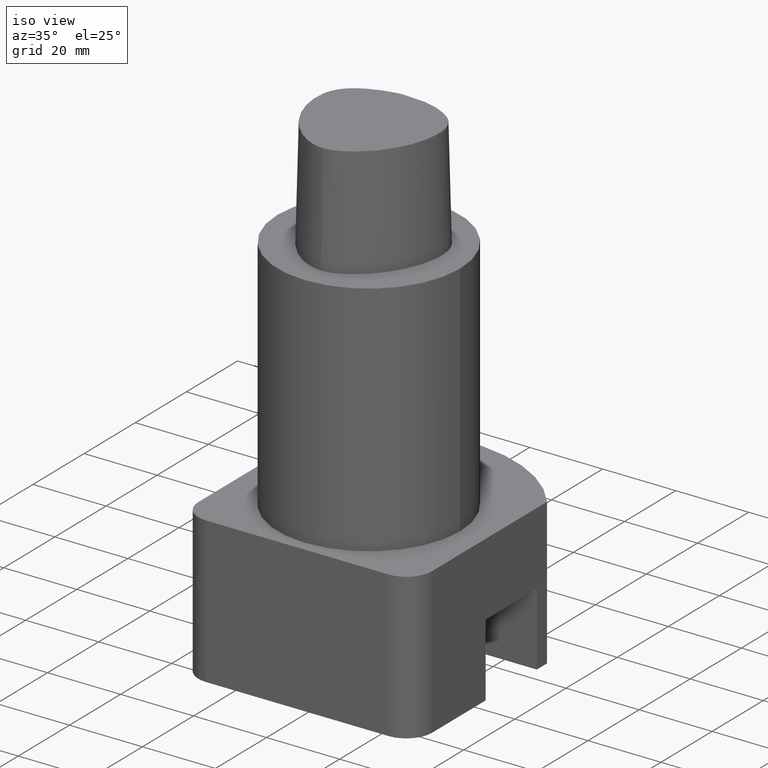
[diagram: clean part render]
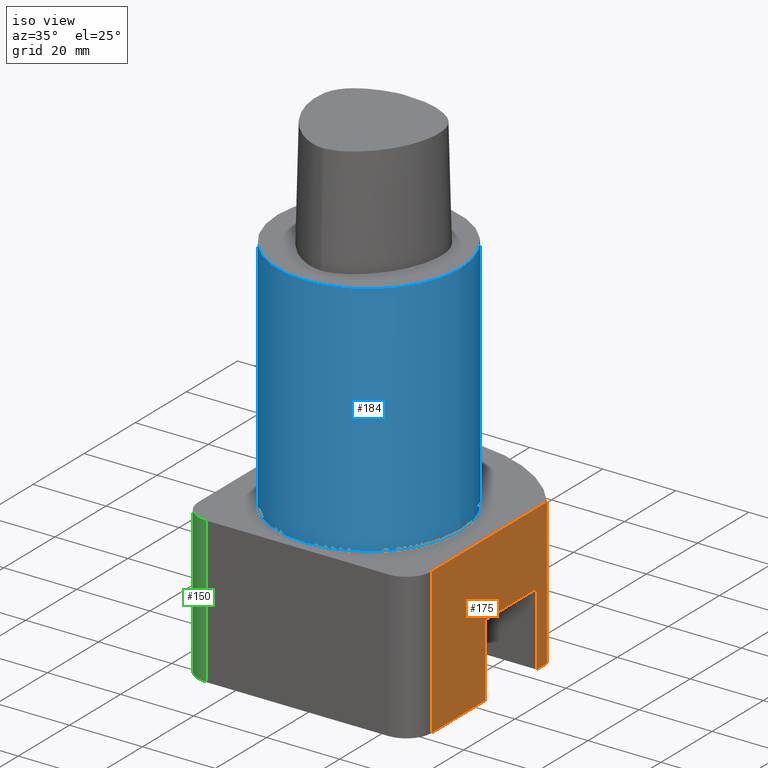
[diagram: same view with three faces highlighted in distinct colors, each labeled with its STEP entity id]
A machine part, iso view with three faces highlighted in distinct colors.
Their STEP definitions:

[orange] entity #175 — the highlighted planar face has unit normal (1, -0, -0).
#78=EDGE_CURVE('240[2]',#217,#218,#219,.T.);
#107=EDGE_CURVE('240[2]',#217,#261,#262,.T.);
#109=EDGE_CURVE('240[2]',#264,#265,#266,.T.);
#122=EDGE_CURVE('240[2]',#228,#264,#283,.T.);
#141=EDGE_CURVE('240[2]',#218,#265,#308,.T.);
#164=EDGE_CURVE('240[2]',#228,#242,#338,.T.);
#175=ADVANCED_FACE('240[2]',(#351),#352,.T.);
#181=EDGE_CURVE('240[2]',#261,#286,#358,.T.);
#190=EDGE_CURVE('240[2]',#286,#242,#369,.T.);
#217=VERTEX_POINT('',#389);
#218=VERTEX_POINT('',#390);
#219=LINE('',#391,#392);
#228=VERTEX_POINT('',#498);
#242=VERTEX_POINT('',#517);
#261=VERTEX_POINT('',#543);
#262=LINE('',#544,#545);
#264=VERTEX_POINT('',#548);
#265=VERTEX_POINT('',#549);
#266=LINE('',#550,#551);
#283=LINE('',#578,#579);
#286=VERTEX_POINT('',#583);
#308=LINE('',#618,#619);
#338=LINE('',#707,#708);
#351=FACE_OUTER_BOUND('',#1109,.T.);
#352=PLANE('',#1110);
#358=LINE('',#1122,#1123);
#369=LINE('',#1140,#1141);
#389=CARTESIAN_POINT('',(32.0,-1.23077003314309E-014,-105.0));
#390=CARTESIAN_POINT('',(32.0,-21.0,-105.0));
#391=CARTESIAN_POINT('',(32.0,22.627417,-105.0));
#392=VECTOR('',#1154,1.0);
#498=CARTESIAN_POINT('',(32.0,24.0,-105.0));
#517=CARTESIAN_POINT('',(32.0,20.0,-105.0));
#543=CARTESIAN_POINT('',(32.0,-1.10830535322835E-014,-85.0));
#544=CARTESIAN_POINT('',(32.0,-1.4236519040088E-014,-136.5));
#545=VECTOR('',#1201,1.0);
#548=CARTESIAN_POINT('',(32.0,24.0,-65.0));
#549=CARTESIAN_POINT('',(32.0,-21.0,-65.0));
#550=CARTESIAN_POINT('',(32.0,22.627417,-65.0));
#551=VECTOR('',#1202,1.0);
#578=CARTESIAN_POINT('',(32.0,24.0,-105.0));
#579=VECTOR('',#1215,1.0);
#583=CARTESIAN_POINT('',(32.0,20.0,-85.0));
#618=CARTESIAN_POINT('',(32.0,-21.0,-105.0));
#619=VECTOR('',#1235,1.0);
#707=CARTESIAN_POINT('',(32.0,22.627417,-105.0));
#708=VECTOR('',#1278,1.0);
#1109=EDGE_LOOP('',(#1294,#1295,#1296,#1297,#1298,#1299,#1300,#1301));
#1110=AXIS2_PLACEMENT_3D('',#1302,#1303,#1304);
#1122=CARTESIAN_POINT('',(32.0,5.40685424999999,-85.0));
#1123=VECTOR('',#1308,1.0);
#1140=CARTESIAN_POINT('',(32.0,20.0,-136.5));
#1141=VECTOR('',#1317,1.0);
#1154=DIRECTION('',(-1.83697019872103E-016,-1.0,6.12323399573677E-017));
#1201=DIRECTION('',(-1.22464679914735E-016,6.12323399573677E-017,1.0));
#1202=DIRECTION('',(-1.83697019872103E-016,-1.0,6.12323399573677E-017));
#1215=DIRECTION('',(-1.22464679914735E-016,6.12323399573676E-017,1.0));
#1235=DIRECTION('',(-1.22464679914735E-016,6.12323399573677E-017,1.0));
#1278=DIRECTION('',(-1.83697019872103E-016,-1.0,6.12323399573677E-017));
#1294=ORIENTED_EDGE('',*,*,#107,.T.);
#1295=ORIENTED_EDGE('',*,*,#181,.T.);
#1296=ORIENTED_EDGE('',*,*,#190,.T.);
#1297=ORIENTED_EDGE('',*,*,#164,.F.);
#1298=ORIENTED_EDGE('',*,*,#122,.T.);
#1299=ORIENTED_EDGE('',*,*,#109,.T.);
#1300=ORIENTED_EDGE('',*,*,#141,.F.);
#1301=ORIENTED_EDGE('',*,*,#78,.F.);
#1302=CARTESIAN_POINT('',(32.0,0.813708499999992,-105.0));
#1303=DIRECTION('',(1.0,-1.83697019872103E-016,-2.24963967399278E-032));
#1304=DIRECTION('',(0.0,-1.22464679914735E-016,1.0));
#1308=DIRECTION('',(1.83697019872103E-016,1.0,-6.12323399573677E-017));
#1317=DIRECTION('',(1.22464679914735E-016,-6.12323399573677E-017,-1.0));

[blue] entity #184 — the highlighted cylindrical surface (bore or boss wall) has radius 24.99 mm, axis along (0, -0, -1).
#97=EDGE_CURVE('240[2]',#246,#246,#247,.T.);
#135=EDGE_CURVE('240[2]',#301,#301,#302,.T.);
#184=ADVANCED_FACE('240[2]',(#361,#362),#363,.T.);
#246=VERTEX_POINT('',#523);
#247=CIRCLE('',#524,24.99);
#301=VERTEX_POINT('',#607);
#302=CIRCLE('',#608,24.99);
#361=FACE_BOUND('',#1127,.T.);
#362=FACE_BOUND('',#1128,.T.);
#363=CYLINDRICAL_SURFACE('',#1129,24.99);
#523=CARTESIAN_POINT('',(24.99,-8.57069062383275E-015,-65.0));
#524=AXIS2_PLACEMENT_3D('',#1178,#1179,#1180);
#607=CARTESIAN_POINT('',(24.99,-4.59058852660385E-015,3.06039235106923E-015));
#608=AXIS2_PLACEMENT_3D('',#1228,#1229,#1230);
#1127=EDGE_LOOP('',(#1310));
#1128=EDGE_LOOP('',(#1311));
#1129=AXIS2_PLACEMENT_3D('',#1312,#1313,#1314);
#1178=CARTESIAN_POINT('',(7.96020419445779E-015,-3.9801020972289E-015,-65.0));
#1179=DIRECTION('',(1.22464679914735E-016,-6.12323399573677E-017,-1.0));
#1180=DIRECTION('',(1.0,-1.83697019872103E-016,1.22464679914735E-016));
#1228=CARTESIAN_POINT('',(0.0,0.0,0.0));
#1229=DIRECTION('',(1.22464679914735E-016,-6.12323399573677E-017,-1.0));
#1230=DIRECTION('',(1.0,-1.83697019872103E-016,1.22464679914735E-016));
#1310=ORIENTED_EDGE('',*,*,#97,.F.);
#1311=ORIENTED_EDGE('',*,*,#135,.T.);
#1312=CARTESIAN_POINT('',(3.9801020972289E-015,-1.99005104861445E-015,-32.5));
#1313=DIRECTION('',(1.22464679914735E-016,-6.12323399573677E-017,-1.0));
#1314=DIRECTION('',(1.0,-1.83697019872103E-016,1.22464679914735E-016));

[green] entity #150 — the highlighted cylindrical surface (edge-blend (fillet) strip) has radius 7 mm, axis along (-0, 0, 1).
#76=EDGE_CURVE('240[2]',#213,#214,#215,.T.);
#93=EDGE_CURVE('240[2]',#239,#214,#240,.T.);
#99=EDGE_CURVE('240[2]',#249,#213,#250,.T.);
#150=ADVANCED_FACE('240[2]',(#320),#321,.T.);
#179=EDGE_CURVE('240[2]',#249,#239,#356,.T.);
#213=VERTEX_POINT('',#384);
#214=VERTEX_POINT('',#385);
#215=CIRCLE('',#386,7.0);
#239=VERTEX_POINT('',#512);
#240=LINE('',#513,#514);
#249=VERTEX_POINT('',#527);
#250=LINE('',#528,#529);
#320=FACE_OUTER_BOUND('',#634,.T.);
#321=CYLINDRICAL_SURFACE('',#635,7.0);
#356=CIRCLE('',#1119,7.0);
#384=CARTESIAN_POINT('',(-25.0,-28.0,-65.0));
#385=CARTESIAN_POINT('',(-32.0,-21.0,-65.0));
#386=AXIS2_PLACEMENT_3D('',#1151,#1152,#1153);
#512=CARTESIAN_POINT('',(-32.0,-21.0,-105.0));
#513=CARTESIAN_POINT('',(-32.0,-21.0,-105.0));
#514=VECTOR('',#1176,1.0);
#527=CARTESIAN_POINT('',(-25.0,-28.0,-105.0));
#528=CARTESIAN_POINT('',(-25.0,-28.0,-105.0));
#529=VECTOR('',#1181,1.0);
#634=EDGE_LOOP('',(#1251,#1252,#1253,#1254));
#635=AXIS2_PLACEMENT_3D('',#1255,#1256,#1257);
#1119=AXIS2_PLACEMENT_3D('',#1305,#1306,#1307);
#1151=CARTESIAN_POINT('',(-25.0,-21.0,-65.0));
#1152=DIRECTION('',(-1.22464679914735E-016,1.22464679914735E-016,-1.0));
#1153=DIRECTION('',(3.06161699786838E-016,1.0,1.22464679914735E-016));
#1176=DIRECTION('',(-1.22464679914735E-016,6.12323399573677E-017,1.0));
#1181=DIRECTION('',(-1.22464679914735E-016,6.12323399573677E-017,1.0));
#1251=ORIENTED_EDGE('',*,*,#76,.T.);
#1252=ORIENTED_EDGE('',*,*,#93,.F.);
#1253=ORIENTED_EDGE('',*,*,#179,.F.);
#1254=ORIENTED_EDGE('',*,*,#99,.T.);
#1255=CARTESIAN_POINT('',(-25.0,-21.0,-105.0));
#1256=DIRECTION('',(-1.22464679914735E-016,6.12323399573677E-017,1.0));
#1257=DIRECTION('',(3.06161699786838E-016,1.0,-6.12323399573677E-017));
#1305=CARTESIAN_POINT('',(-25.0,-21.0,-105.0));
#1306=DIRECTION('',(-1.22464679914735E-016,1.22464679914735E-016,-1.0));
#1307=DIRECTION('',(3.06161699786838E-016,1.0,1.22464679914735E-016));